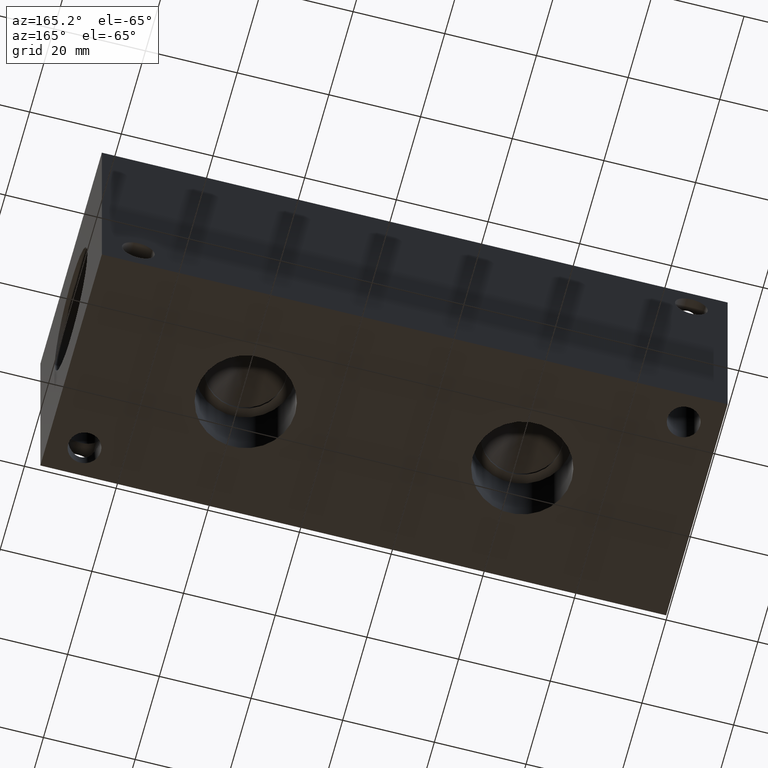
[diagram: clean part render]
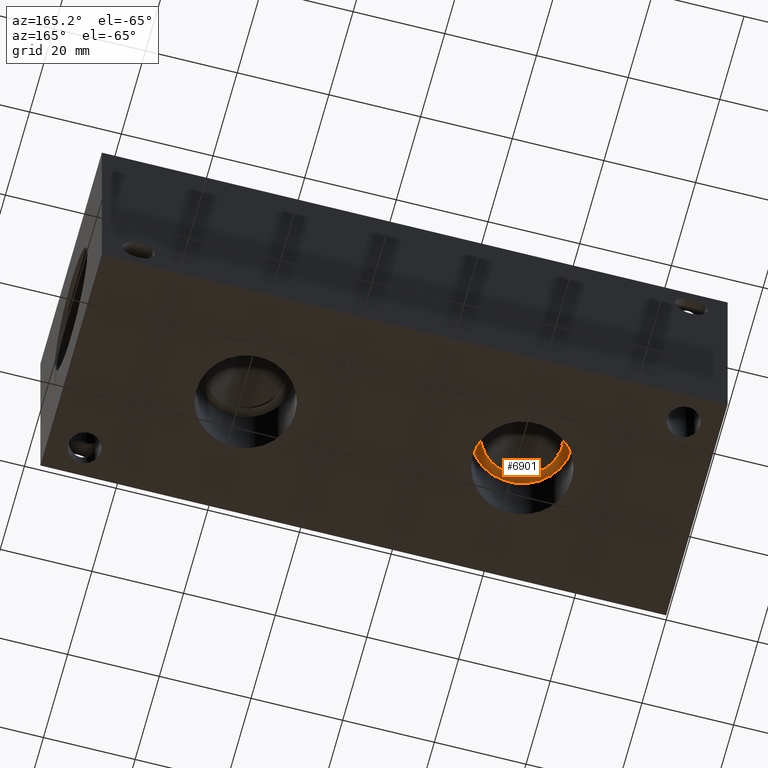
[diagram: same view with one face highlighted and labeled with its STEP entity id]
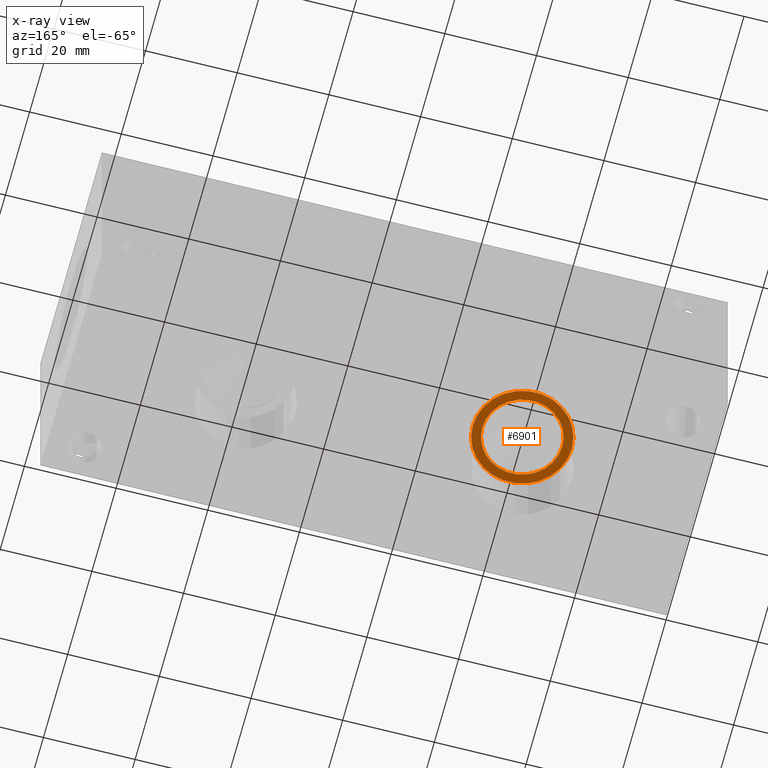
[diagram: x-ray of the same camera — body ghosted, the highlighted face saturated]
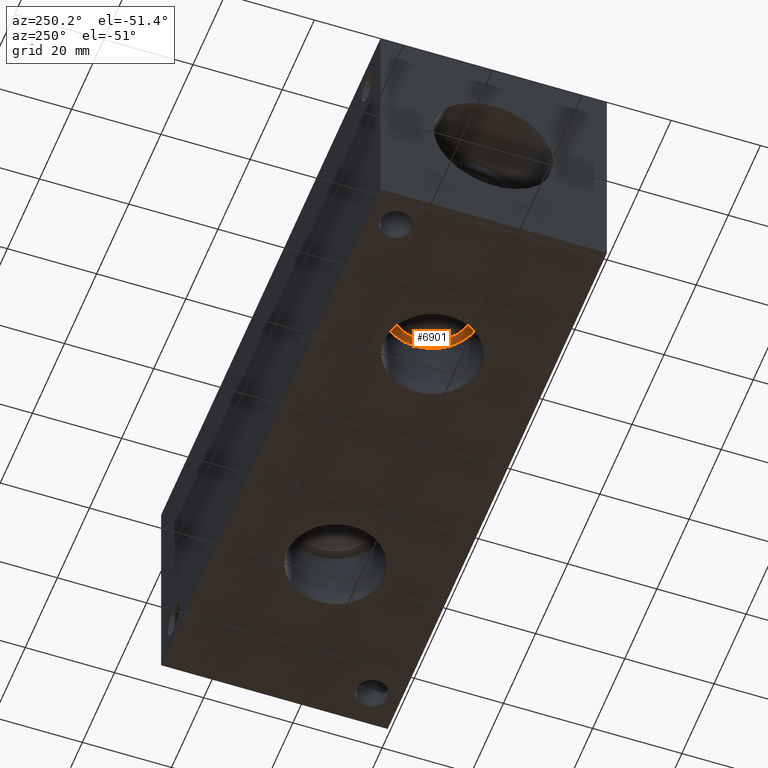
[diagram: same view with one face highlighted and labeled with its STEP entity id]
A machine part, auxiliary view. The second image highlights one B-rep face of the part: STEP entity #6901.
The next image is the same camera in x-ray: the body ghosted, the highlighted face saturated — about 24% of this face is hidden behind the body in this view.
A second angle (auxiliary view) of the same face is appended — the face is thin or edge-on in the first view.
In plain terms, the highlighted planar face has unit normal (0, 0, -1).
Its self-contained STEP definition (entity closure, byte-faithful):
#58=CIRCLE('',#7175,10.795);
#59=CIRCLE('',#7176,10.795);
#60=CIRCLE('',#7177,8.7376);
#136=FACE_BOUND('',#1075,.T.);
#363=PLANE('',#7174);
#689=FACE_OUTER_BOUND('',#1074,.T.);
#1074=EDGE_LOOP('',(#5995,#5996));
#1075=EDGE_LOOP('',(#5997));
#3278=VERTEX_POINT('',#11657);
#3279=VERTEX_POINT('',#11658);
#3280=VERTEX_POINT('',#11661);
#4199=EDGE_CURVE('',#3278,#3279,#58,.T.);
#4200=EDGE_CURVE('',#3279,#3278,#59,.T.);
#4201=EDGE_CURVE('',#3280,#3280,#60,.T.);
#5995=ORIENTED_EDGE('',*,*,#4199,.T.);
#5996=ORIENTED_EDGE('',*,*,#4200,.T.);
#5997=ORIENTED_EDGE('',*,*,#4201,.F.);
#6901=ADVANCED_FACE('',(#689,#136),#363,.T.);
#7174=AXIS2_PLACEMENT_3D('',#11656,#8359,#8360);
#7175=AXIS2_PLACEMENT_3D('',#11659,#8361,#8362);
#7176=AXIS2_PLACEMENT_3D('',#11660,#8363,#8364);
#7177=AXIS2_PLACEMENT_3D('',#11662,#8365,#8366);
#8359=DIRECTION('center_axis',(0.,0.,-1.));
#8360=DIRECTION('ref_axis',(1.,0.,0.));
#8361=DIRECTION('center_axis',(0.,0.,-1.));
#8362=DIRECTION('ref_axis',(1.,0.,0.));
#8363=DIRECTION('center_axis',(0.,0.,-1.));
#8364=DIRECTION('ref_axis',(1.,0.,0.));
#8365=DIRECTION('center_axis',(0.,0.,-1.));
#8366=DIRECTION('ref_axis',(1.,0.,0.));
#11656=CARTESIAN_POINT('Origin',(38.1,25.4,15.367));
#11657=CARTESIAN_POINT('',(48.895,25.4,15.367));
#11658=CARTESIAN_POINT('',(27.305,25.4,15.367));
#11659=CARTESIAN_POINT('Origin',(38.1,25.4,15.367));
#11660=CARTESIAN_POINT('Origin',(38.1,25.4,15.367));
#11661=CARTESIAN_POINT('',(29.3624,25.4,15.367));
#11662=CARTESIAN_POINT('Origin',(38.1,25.4,15.367));